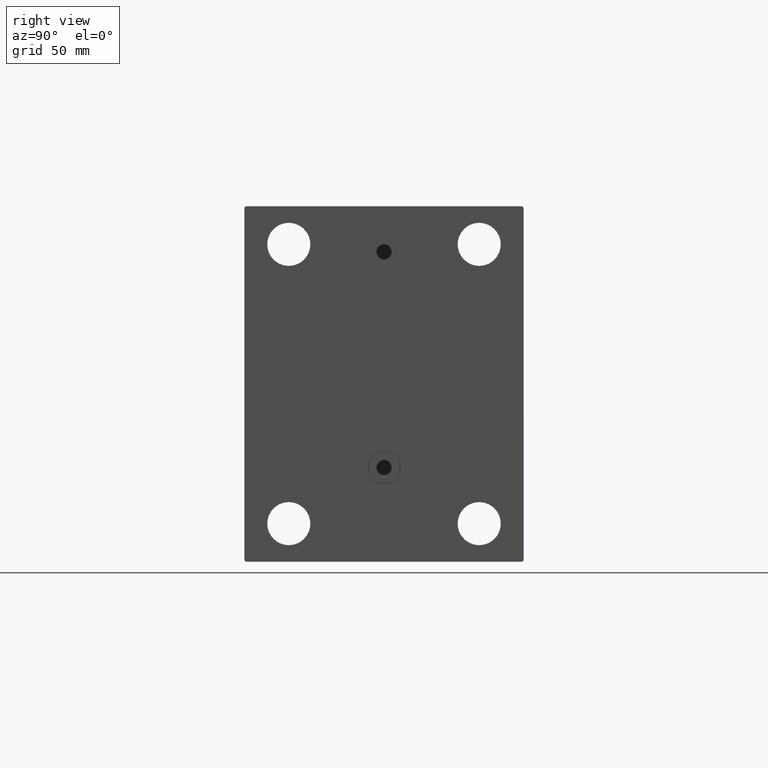
[diagram: clean part render]
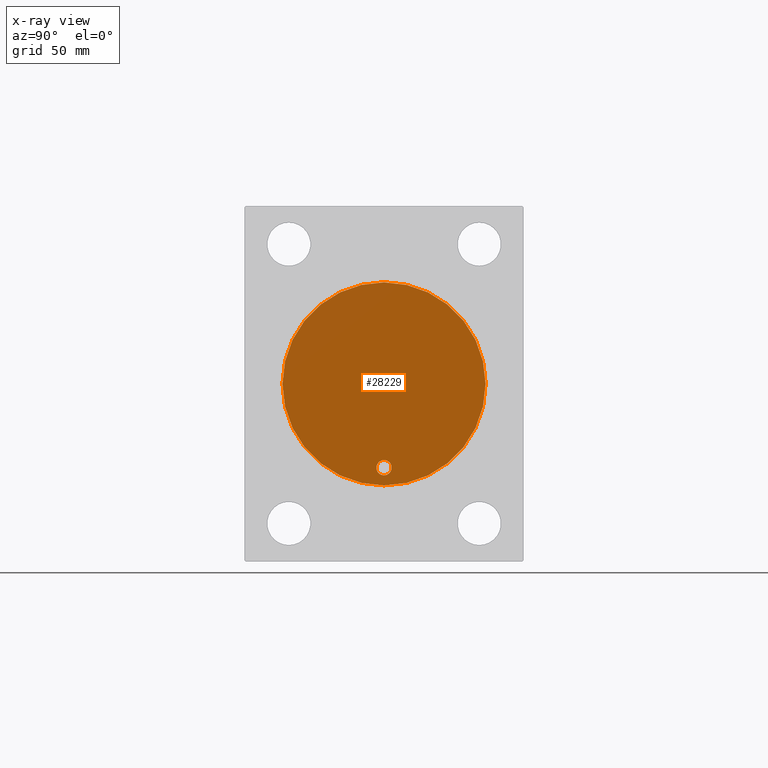
[diagram: x-ray — body ghosted, one internal face saturated and labeled with its STEP entity id]
A machine part, right view, then the same camera in x-ray: the body is ghosted and one INTERNAL B-rep face — a face not visible from any outside direction — is saturated and labeled: STEP entity #28229.
In plain terms, the highlighted planar face has unit normal (-1, 0, 0).
Its self-contained STEP definition (entity closure, byte-faithful):
#3590 = CARTESIAN_POINT ( 'NONE',  ( 51.00000000000000000, 4.041334437186266200E-15, -36.00000000000000711 ) ) ;
#4665 = CARTESIAN_POINT ( 'NONE',  ( 51.00000000000000000, 4.041334437186266200E-15, -33.00000000000000000 ) ) ;
#6087 = AXIS2_PLACEMENT_3D ( 'NONE', #26485, #23426, #37583 ) ;
#8673 = DIRECTION ( 'NONE',  ( -1.000000000000000000, 0.000000000000000000, 0.000000000000000000 ) ) ;
#8730 = DIRECTION ( 'NONE',  ( -1.000000000000000000, 0.000000000000000000, 0.000000000000000000 ) ) ;
#10235 = CARTESIAN_POINT ( 'NONE',  ( 51.00000000000000000, 4.041334437186266200E-15, -33.00000000000000000 ) ) ;
#13277 = CIRCLE ( 'NONE', #31348, 3.000000000000002665 ) ;
#13792 = FACE_OUTER_BOUND ( 'NONE', #31432, .T. ) ;
#14499 = DIRECTION ( 'NONE',  ( -1.000000000000000000, 0.000000000000000000, 0.000000000000000000 ) ) ;
#16512 = DIRECTION ( 'NONE',  ( 0.000000000000000000, 0.000000000000000000, 1.000000000000000000 ) ) ;
#17101 = EDGE_CURVE ( 'NONE', #33228, #19822, #36240, .T. ) ;
#18037 = PLANE ( 'NONE',  #26000 ) ;
#19288 = DIRECTION ( 'NONE',  ( 0.000000000000000000, 0.000000000000000000, 1.000000000000000000 ) ) ;
#19822 = VERTEX_POINT ( 'NONE', #19907 ) ;
#19907 = CARTESIAN_POINT ( 'NONE',  ( 51.00000000000000000, 0.000000000000000000, 40.00000000000000000 ) ) ;
#21839 = ORIENTED_EDGE ( 'NONE', *, *, #46015, .T. ) ;
#23308 = ORIENTED_EDGE ( 'NONE', *, *, #31965, .F. ) ;
#23426 = DIRECTION ( 'NONE',  ( -1.000000000000000000, 0.000000000000000000, 0.000000000000000000 ) ) ;
#24600 = CIRCLE ( 'NONE', #40432, 40.00000000000000000 ) ;
#26000 = AXIS2_PLACEMENT_3D ( 'NONE', #39292, #14499, #31729 ) ;
#26485 = CARTESIAN_POINT ( 'NONE',  ( 51.00000000000000000, 0.000000000000000000, 0.000000000000000000 ) ) ;
#27362 = CARTESIAN_POINT ( 'NONE',  ( 51.00000000000000000, 0.000000000000000000, 0.000000000000000000 ) ) ;
#27719 = DIRECTION ( 'NONE',  ( -1.000000000000000000, 0.000000000000000000, 0.000000000000000000 ) ) ;
#28229 = ADVANCED_FACE ( 'NONE', ( #36445, #13792 ), #18037, .T. ) ;
#28578 = VERTEX_POINT ( 'NONE', #32842 ) ;
#31203 = AXIS2_PLACEMENT_3D ( 'NONE', #10235, #27719, #45419 ) ;
#31348 = AXIS2_PLACEMENT_3D ( 'NONE', #4665, #8673, #19288 ) ;
#31432 = EDGE_LOOP ( 'NONE', ( #21839, #40719 ) ) ;
#31729 = DIRECTION ( 'NONE',  ( 0.000000000000000000, 0.000000000000000000, 1.000000000000000000 ) ) ;
#31935 = CIRCLE ( 'NONE', #31203, 3.000000000000002665 ) ;
#31965 = EDGE_CURVE ( 'NONE', #28578, #43371, #13277, .T. ) ;
#32842 = CARTESIAN_POINT ( 'NONE',  ( 51.00000000000000000, 4.408728476930471644E-15, -30.00000000000000000 ) ) ;
#33228 = VERTEX_POINT ( 'NONE', #35094 ) ;
#35094 = CARTESIAN_POINT ( 'NONE',  ( 51.00000000000000000, 4.898587196589413026E-15, -40.00000000000000000 ) ) ;
#36240 = CIRCLE ( 'NONE', #6087, 40.00000000000000000 ) ;
#36445 = FACE_BOUND ( 'NONE', #39290, .T. ) ;
#37583 = DIRECTION ( 'NONE',  ( 0.000000000000000000, 0.000000000000000000, 1.000000000000000000 ) ) ;
#38558 = EDGE_CURVE ( 'NONE', #43371, #28578, #31935, .T. ) ;
#39290 = EDGE_LOOP ( 'NONE', ( #43869, #23308 ) ) ;
#39292 = CARTESIAN_POINT ( 'NONE',  ( 51.00000000000000000, 0.000000000000000000, 0.000000000000000000 ) ) ;
#40432 = AXIS2_PLACEMENT_3D ( 'NONE', #27362, #8730, #16512 ) ;
#40719 = ORIENTED_EDGE ( 'NONE', *, *, #17101, .T. ) ;
#43371 = VERTEX_POINT ( 'NONE', #3590 ) ;
#43869 = ORIENTED_EDGE ( 'NONE', *, *, #38558, .F. ) ;
#45419 = DIRECTION ( 'NONE',  ( 0.000000000000000000, 0.000000000000000000, 1.000000000000000000 ) ) ;
#46015 = EDGE_CURVE ( 'NONE', #19822, #33228, #24600, .T. ) ;